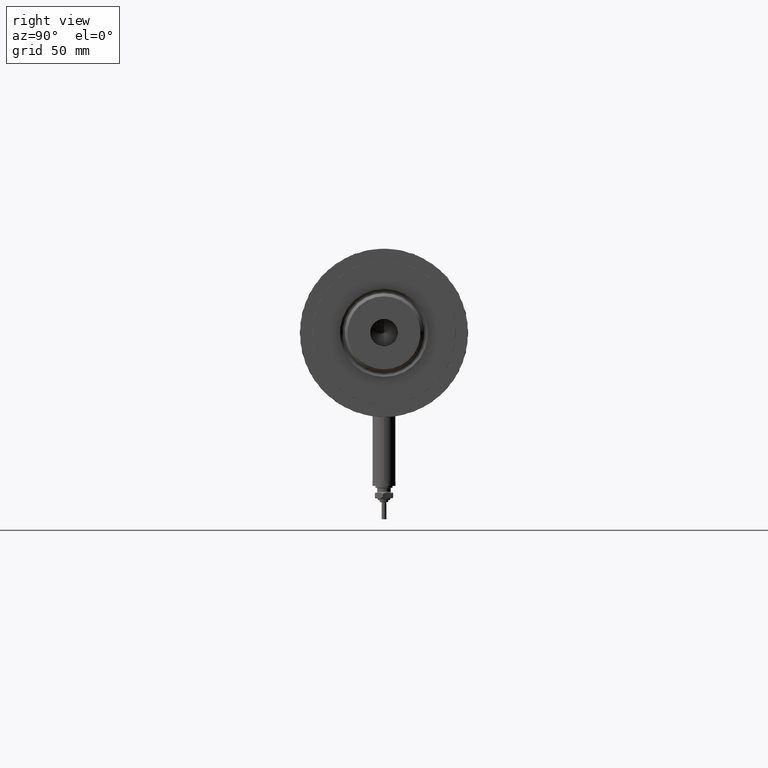
[diagram: clean part render]
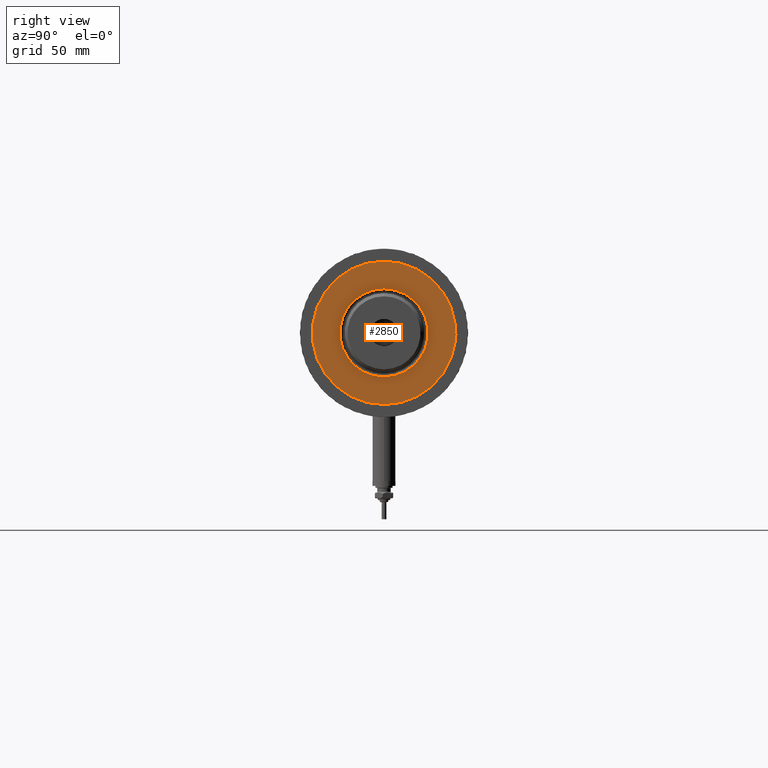
[diagram: same view with one face highlighted and labeled with its STEP entity id]
A machine part, right view. The second image highlights one B-rep face of the part: STEP entity #2850.
In plain terms, the highlighted planar face has unit normal (1, 0, -0).
Its self-contained STEP definition (entity closure, byte-faithful):
#340 = CARTESIAN_POINT ( 'NONE',  ( 0.000000000000000000, 0.000000000000000000, 59.89999999999999147 ) ) ;
#423 = CIRCLE ( 'NONE', #2264, 37.50000000000000711 ) ;
#436 = VERTEX_POINT ( 'NONE', #5770 ) ;
#467 = EDGE_LOOP ( 'NONE', ( #5215, #3489 ) ) ;
#504 = EDGE_CURVE ( 'NONE', #4817, #1895, #2014, .T. ) ;
#743 = ORIENTED_EDGE ( 'NONE', *, *, #1024, .T. ) ;
#797 = CARTESIAN_POINT ( 'NONE',  ( 0.000000000000000000, 0.000000000000000000, 59.89999999999999147 ) ) ;
#913 = CIRCLE ( 'NONE', #4491, 37.50000000000000711 ) ;
#1024 = EDGE_CURVE ( 'NONE', #1895, #4817, #1044, .T. ) ;
#1044 = CIRCLE ( 'NONE', #2996, 23.05000000000002913 ) ;
#1330 = DIRECTION ( 'NONE',  ( 0.000000000000000000, 0.000000000000000000, 1.000000000000000000 ) ) ;
#1539 = DIRECTION ( 'NONE',  ( 1.000000000000000000, 0.000000000000000000, 0.000000000000000000 ) ) ;
#1573 = DIRECTION ( 'NONE',  ( 0.000000000000000000, 0.000000000000000000, 1.000000000000000000 ) ) ;
#1663 = DIRECTION ( 'NONE',  ( 1.000000000000000000, 0.000000000000000000, 0.000000000000000000 ) ) ;
#1717 = FACE_OUTER_BOUND ( 'NONE', #467, .T. ) ;
#1791 = CARTESIAN_POINT ( 'NONE',  ( 0.000000000000000000, 0.000000000000000000, 59.89999999999999147 ) ) ;
#1843 = VERTEX_POINT ( 'NONE', #3355 ) ;
#1895 = VERTEX_POINT ( 'NONE', #4326 ) ;
#2014 = CIRCLE ( 'NONE', #2226, 23.05000000000002913 ) ;
#2226 = AXIS2_PLACEMENT_3D ( 'NONE', #797, #4038, #5895 ) ;
#2264 = AXIS2_PLACEMENT_3D ( 'NONE', #3881, #1573, #1539 ) ;
#2549 = CARTESIAN_POINT ( 'NONE',  ( 0.000000000000000000, 0.000000000000000000, 59.89999999999999147 ) ) ;
#2850 = ADVANCED_FACE ( 'NONE', ( #3201, #1717 ), #5444, .T. ) ;
#2996 = AXIS2_PLACEMENT_3D ( 'NONE', #340, #4984, #1663 ) ;
#3201 = FACE_BOUND ( 'NONE', #3565, .T. ) ;
#3334 = ORIENTED_EDGE ( 'NONE', *, *, #504, .T. ) ;
#3355 = CARTESIAN_POINT ( 'NONE',  ( 37.50000000000000711, 4.592425496802575156E-15, 59.89999999999999147 ) ) ;
#3485 = AXIS2_PLACEMENT_3D ( 'NONE', #1791, #1330, #5480 ) ;
#3489 = ORIENTED_EDGE ( 'NONE', *, *, #4850, .T. ) ;
#3565 = EDGE_LOOP ( 'NONE', ( #3334, #743 ) ) ;
#3881 = CARTESIAN_POINT ( 'NONE',  ( 0.000000000000000000, 0.000000000000000000, 59.89999999999999147 ) ) ;
#4038 = DIRECTION ( 'NONE',  ( -0.000000000000000000, -0.000000000000000000, -1.000000000000000000 ) ) ;
#4326 = CARTESIAN_POINT ( 'NONE',  ( -23.05000000000002913, 2.822810872034651791E-15, 59.89999999999999147 ) ) ;
#4491 = AXIS2_PLACEMENT_3D ( 'NONE', #2549, #5698, #5784 ) ;
#4817 = VERTEX_POINT ( 'NONE', #5188 ) ;
#4850 = EDGE_CURVE ( 'NONE', #1843, #436, #913, .T. ) ;
#4984 = DIRECTION ( 'NONE',  ( -0.000000000000000000, -0.000000000000000000, -1.000000000000000000 ) ) ;
#5188 = CARTESIAN_POINT ( 'NONE',  ( 23.05000000000002913, 0.000000000000000000, 59.89999999999999147 ) ) ;
#5215 = ORIENTED_EDGE ( 'NONE', *, *, #5778, .T. ) ;
#5444 = PLANE ( 'NONE',  #3485 ) ;
#5480 = DIRECTION ( 'NONE',  ( 1.000000000000000000, 0.000000000000000000, -0.000000000000000000 ) ) ;
#5698 = DIRECTION ( 'NONE',  ( 0.000000000000000000, 0.000000000000000000, 1.000000000000000000 ) ) ;
#5770 = CARTESIAN_POINT ( 'NONE',  ( -37.50000000000000711, 0.000000000000000000, 59.89999999999999147 ) ) ;
#5778 = EDGE_CURVE ( 'NONE', #436, #1843, #423, .T. ) ;
#5784 = DIRECTION ( 'NONE',  ( 1.000000000000000000, 0.000000000000000000, 0.000000000000000000 ) ) ;
#5895 = DIRECTION ( 'NONE',  ( 1.000000000000000000, 0.000000000000000000, 0.000000000000000000 ) ) ;